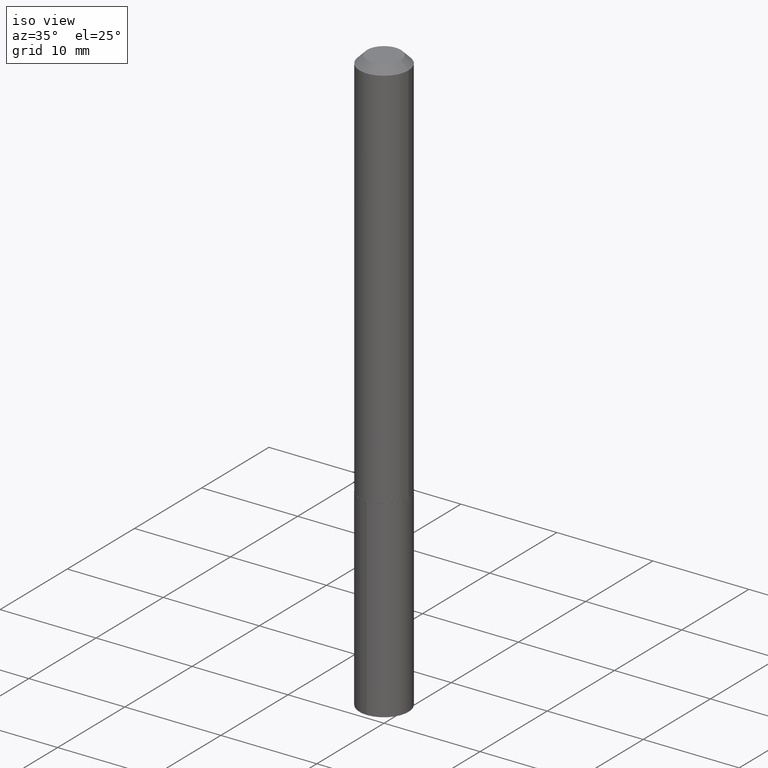
[diagram: clean part render]
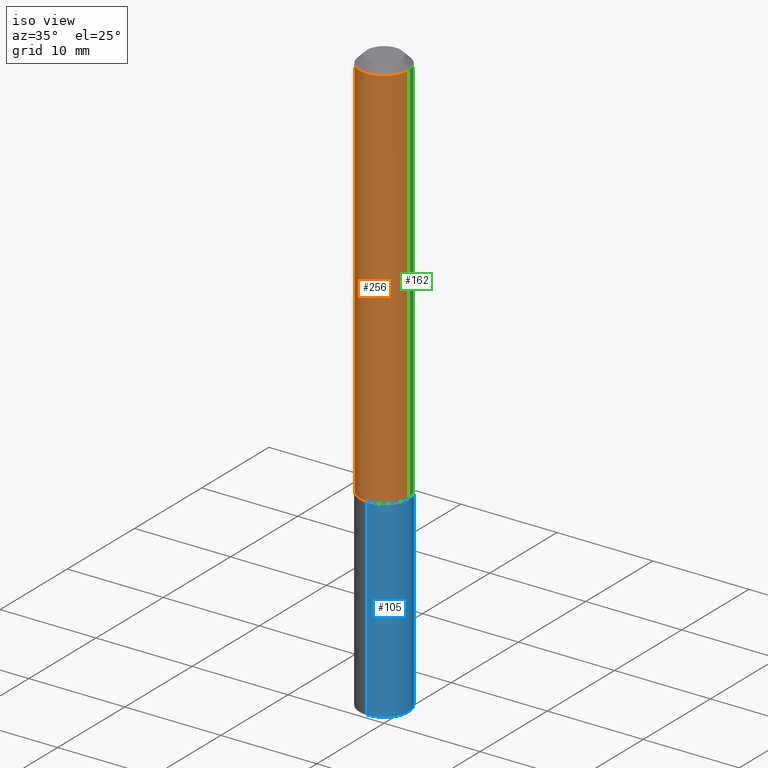
[diagram: same view with three faces highlighted in distinct colors, each labeled with its STEP entity id]
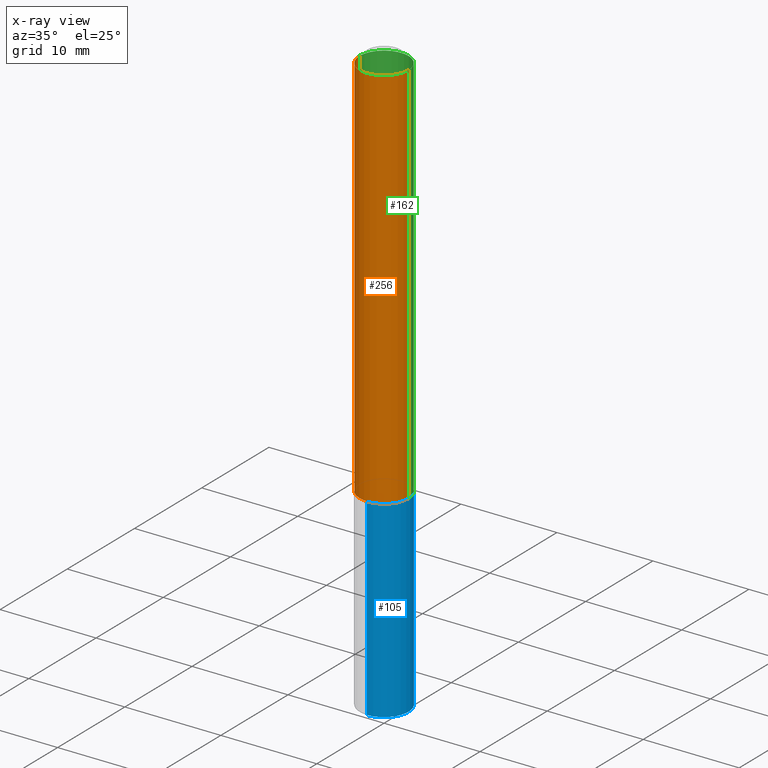
[diagram: x-ray of the same camera — body ghosted, the three highlighted faces saturated]
A machine part, iso view with three faces highlighted in distinct colors.
The next image is the same camera in x-ray (body ghosted, the three faces saturated) — at least one of them is partly hidden behind the body in this view.
Their STEP definitions:

[orange] entity #256 — the highlighted cylindrical surface (edge-blend (fillet) strip) has radius 2.5502 mm, axis along (-0, 0, 1).
#2 = CARTESIAN_POINT ( 'NONE',  ( 0.1004000000000002113, -6.348909666552376614E-15, -1.617600000000000149 ) ) ;
#46 = CARTESIAN_POINT ( 'NONE',  ( 0.1004000000000001142, -7.010894528397019642E-16, 4.895681482899124760E-30 ) ) ;
#47 = VERTEX_POINT ( 'NONE', #359 ) ;
#53 = VERTEX_POINT ( 'NONE', #70 ) ;
#61 = CARTESIAN_POINT ( 'NONE',  ( -0.1004000000000001142, 7.133849067031413977E-16, -4.938610830615930599E-30 ) ) ;
#65 = EDGE_LOOP ( 'NONE', ( #339, #270, #92, #271 ) ) ;
#66 = DIRECTION ( 'NONE',  ( 1.000000000000000000, -6.982962677686266711E-15, 4.876176775795935232E-29 ) ) ;
#70 = CARTESIAN_POINT ( 'NONE',  ( 0.1004000000000000170, -8.101982446785503746E-16, -0.03125000000000020123 ) ) ;
#81 = VERTEX_POINT ( 'NONE', #384 ) ;
#92 = ORIENTED_EDGE ( 'NONE', *, *, #292, .T. ) ;
#107 = VECTOR ( 'NONE', #181, 39.37007874015748143 ) ;
#117 = LINE ( 'NONE', #46, #265 ) ;
#129 = CARTESIAN_POINT ( 'NONE',  ( 0.000000000000000000, 0.000000000000000000, 0.000000000000000000 ) ) ;
#137 = CIRCLE ( 'NONE', #351, 0.1004000000000002113 ) ;
#146 = EDGE_CURVE ( 'NONE', #47, #236, #137, .T. ) ;
#150 = AXIS2_PLACEMENT_3D ( 'NONE', #129, #220, #66 ) ;
#160 = DIRECTION ( 'NONE',  ( 1.000000000000000000, -6.982962677686267499E-15, 0.000000000000000000 ) ) ;
#168 = CARTESIAN_POINT ( 'NONE',  ( 7.642090019328601786E-31, -1.091087918388490144E-16, -0.03125000000000020123 ) ) ;
#180 = CIRCLE ( 'NONE', #358, 0.1004000000000000170 ) ;
#181 = DIRECTION ( 'NONE',  ( -2.445468806185136877E-29, 3.491481338843145188E-15, 1.000000000000000000 ) ) ;
#190 = EDGE_CURVE ( 'NONE', #47, #81, #273, .T. ) ;
#220 = DIRECTION ( 'NONE',  ( -2.445468806185136597E-29, 3.491481338843145583E-15, 1.000000000000000000 ) ) ;
#225 = FACE_OUTER_BOUND ( 'NONE', #65, .T. ) ;
#236 = VERTEX_POINT ( 'NONE', #2 ) ;
#240 = DIRECTION ( 'NONE',  ( 1.000000000000000000, -6.982962677686266711E-15, 0.000000000000000000 ) ) ;
#256 = ADVANCED_FACE ( 'NONE', ( #225 ), #335, .T. ) ;
#261 = DIRECTION ( 'NONE',  ( -2.445468806185136597E-29, 3.491481338843145583E-15, 1.000000000000000000 ) ) ;
#265 = VECTOR ( 'NONE', #340, 39.37007874015748143 ) ;
#270 = ORIENTED_EDGE ( 'NONE', *, *, #146, .T. ) ;
#271 = ORIENTED_EDGE ( 'NONE', *, *, #361, .F. ) ;
#273 = LINE ( 'NONE', #61, #107 ) ;
#292 = EDGE_CURVE ( 'NONE', #236, #53, #117, .T. ) ;
#331 = DIRECTION ( 'NONE',  ( -2.445468806185136597E-29, 3.491481338843145583E-15, 1.000000000000000000 ) ) ;
#335 = CYLINDRICAL_SURFACE ( 'NONE', #150, 0.1004000000000001142 ) ;
#339 = ORIENTED_EDGE ( 'NONE', *, *, #190, .F. ) ;
#340 = DIRECTION ( 'NONE',  ( -2.445468806185136877E-29, 3.491481338843145188E-15, 1.000000000000000000 ) ) ;
#351 = AXIS2_PLACEMENT_3D ( 'NONE', #363, #331, #160 ) ;
#358 = AXIS2_PLACEMENT_3D ( 'NONE', #168, #261, #240 ) ;
#359 = CARTESIAN_POINT ( 'NONE',  ( -0.1004000000000002113, -4.934435307009531477E-15, -1.617600000000000149 ) ) ;
#361 = EDGE_CURVE ( 'NONE', #81, #53, #180, .T. ) ;
#363 = CARTESIAN_POINT ( 'NONE',  ( 3.955790340885077095E-29, -5.647820213712673171E-15, -1.617600000000000149 ) ) ;
#384 = CARTESIAN_POINT ( 'NONE',  ( -0.1004000000000000170, -2.165079596072618653E-15, -0.03125000000000020123 ) ) ;

[blue] entity #105 — the highlighted cylindrical surface (edge-blend (fillet) strip) has radius 2.5502 mm, axis along (-0, 0, 1).
#11 = DIRECTION ( 'NONE',  ( -6.982962677686266711E-15, -1.000000000000000000, 2.720964137115799877E-15 ) ) ;
#26 = ORIENTED_EDGE ( 'NONE', *, *, #27, .T. ) ;
#27 = EDGE_CURVE ( 'NONE', #139, #370, #135, .T. ) ;
#29 = DIRECTION ( 'NONE',  ( -2.445476300407817820E-29, 3.491470606689721326E-15, 1.000000000000000000 ) ) ;
#39 = CARTESIAN_POINT ( 'NONE',  ( 7.133849067031800519E-16, 0.1003999999999943549, -1.618100000000000316 ) ) ;
#43 = EDGE_CURVE ( 'NONE', #195, #139, #277, .T. ) ;
#67 = CARTESIAN_POINT ( 'NONE',  ( -7.010894528396423066E-16, -0.1004000000000084408, -2.409244001596550167 ) ) ;
#69 = DIRECTION ( 'NONE',  ( -6.982962677686266711E-15, -1.000000000000000000, 2.720964137115799877E-15 ) ) ;
#78 = CARTESIAN_POINT ( 'NONE',  ( -7.010894528396616337E-16, -0.1004000000000056514, -1.618099999999999872 ) ) ;
#80 = CARTESIAN_POINT ( 'NONE',  ( 7.133849067031995762E-16, 0.1003999999999943549, -1.618100000000000316 ) ) ;
#95 = EDGE_LOOP ( 'NONE', ( #128, #26, #141, #268 ) ) ;
#103 = CARTESIAN_POINT ( 'NONE',  ( 5.891736981402338159E-29, -8.411821981615335412E-15, -2.409244001596550611 ) ) ;
#104 = VECTOR ( 'NONE', #278, 39.37007874015748143 ) ;
#105 = ADVANCED_FACE ( 'NONE', ( #356 ), #106, .T. ) ;
#106 = CYLINDRICAL_SURFACE ( 'NONE', #108, 0.1004000000000000031 ) ;
#108 = AXIS2_PLACEMENT_3D ( 'NONE', #362, #251, #69 ) ;
#127 = CIRCLE ( 'NONE', #133, 0.1004000000000000031 ) ;
#128 = ORIENTED_EDGE ( 'NONE', *, *, #43, .T. ) ;
#133 = AXIS2_PLACEMENT_3D ( 'NONE', #337, #231, #11 ) ;
#135 = LINE ( 'NONE', #39, #158 ) ;
#139 = VERTEX_POINT ( 'NONE', #301 ) ;
#141 = ORIENTED_EDGE ( 'NONE', *, *, #296, .F. ) ;
#158 = VECTOR ( 'NONE', #224, 39.37007874015748143 ) ;
#159 = LINE ( 'NONE', #297, #104 ) ;
#188 = DIRECTION ( 'NONE',  ( -6.982962677686266711E-15, -1.000000000000000000, 2.720964137115799877E-15 ) ) ;
#195 = VERTEX_POINT ( 'NONE', #67 ) ;
#224 = DIRECTION ( 'NONE',  ( -2.445476300407817820E-29, 3.491470606689721721E-15, 1.000000000000000000 ) ) ;
#227 = EDGE_CURVE ( 'NONE', #195, #316, #159, .T. ) ;
#231 = DIRECTION ( 'NONE',  ( -2.445476300407817820E-29, 3.491470606689721326E-15, 1.000000000000000000 ) ) ;
#251 = DIRECTION ( 'NONE',  ( -2.445476300407817820E-29, 3.491470606689721326E-15, 1.000000000000000000 ) ) ;
#268 = ORIENTED_EDGE ( 'NONE', *, *, #227, .F. ) ;
#277 = CIRCLE ( 'NONE', #376, 0.1004000000000000031 ) ;
#278 = DIRECTION ( 'NONE',  ( -2.445476300407817820E-29, 3.491470606689721721E-15, 1.000000000000000000 ) ) ;
#296 = EDGE_CURVE ( 'NONE', #316, #370, #127, .T. ) ;
#297 = CARTESIAN_POINT ( 'NONE',  ( -7.010894528396616337E-16, -0.1004000000000056514, -1.618099999999999872 ) ) ;
#301 = CARTESIAN_POINT ( 'NONE',  ( 7.133849067031996748E-16, 0.1003999999999916209, -2.409244001596551055 ) ) ;
#316 = VERTEX_POINT ( 'NONE', #78 ) ;
#337 = CARTESIAN_POINT ( 'NONE',  ( 3.957013075288169897E-29, -5.649565954382093886E-15, -1.618100000000000094 ) ) ;
#356 = FACE_OUTER_BOUND ( 'NONE', #95, .T. ) ;
#362 = CARTESIAN_POINT ( 'NONE',  ( 3.957013075288169897E-29, -5.649565954382093886E-15, -1.618100000000000094 ) ) ;
#370 = VERTEX_POINT ( 'NONE', #80 ) ;
#376 = AXIS2_PLACEMENT_3D ( 'NONE', #103, #29, #188 ) ;

[green] entity #162 — the highlighted cylindrical surface (edge-blend (fillet) strip) has radius 2.5502 mm, axis along (-0, 0, 1).
#2 = CARTESIAN_POINT ( 'NONE',  ( 0.1004000000000002113, -6.348909666552376614E-15, -1.617600000000000149 ) ) ;
#4 = FACE_OUTER_BOUND ( 'NONE', #185, .T. ) ;
#23 = ORIENTED_EDGE ( 'NONE', *, *, #142, .T. ) ;
#28 = CIRCLE ( 'NONE', #136, 0.1004000000000000170 ) ;
#45 = ORIENTED_EDGE ( 'NONE', *, *, #292, .F. ) ;
#46 = CARTESIAN_POINT ( 'NONE',  ( 0.1004000000000001142, -7.010894528397019642E-16, 4.895681482899124760E-30 ) ) ;
#47 = VERTEX_POINT ( 'NONE', #359 ) ;
#53 = VERTEX_POINT ( 'NONE', #70 ) ;
#56 = CIRCLE ( 'NONE', #91, 0.1004000000000002113 ) ;
#61 = CARTESIAN_POINT ( 'NONE',  ( -0.1004000000000001142, 7.133849067031413977E-16, -4.938610830615930599E-30 ) ) ;
#70 = CARTESIAN_POINT ( 'NONE',  ( 0.1004000000000000170, -8.101982446785503746E-16, -0.03125000000000020123 ) ) ;
#81 = VERTEX_POINT ( 'NONE', #384 ) ;
#91 = AXIS2_PLACEMENT_3D ( 'NONE', #154, #221, #222 ) ;
#107 = VECTOR ( 'NONE', #181, 39.37007874015748143 ) ;
#117 = LINE ( 'NONE', #46, #265 ) ;
#136 = AXIS2_PLACEMENT_3D ( 'NONE', #255, #309, #293 ) ;
#142 = EDGE_CURVE ( 'NONE', #236, #47, #56, .T. ) ;
#154 = CARTESIAN_POINT ( 'NONE',  ( 3.955790340885077095E-29, -5.647820213712673171E-15, -1.617600000000000149 ) ) ;
#162 = ADVANCED_FACE ( 'NONE', ( #4 ), #275, .T. ) ;
#181 = DIRECTION ( 'NONE',  ( -2.445468806185136877E-29, 3.491481338843145188E-15, 1.000000000000000000 ) ) ;
#185 = EDGE_LOOP ( 'NONE', ( #23, #243, #346, #45 ) ) ;
#190 = EDGE_CURVE ( 'NONE', #47, #81, #273, .T. ) ;
#198 = AXIS2_PLACEMENT_3D ( 'NONE', #388, #328, #279 ) ;
#221 = DIRECTION ( 'NONE',  ( -2.445468806185136597E-29, 3.491481338843145583E-15, 1.000000000000000000 ) ) ;
#222 = DIRECTION ( 'NONE',  ( 1.000000000000000000, -6.982962677686267499E-15, 0.000000000000000000 ) ) ;
#236 = VERTEX_POINT ( 'NONE', #2 ) ;
#243 = ORIENTED_EDGE ( 'NONE', *, *, #190, .T. ) ;
#255 = CARTESIAN_POINT ( 'NONE',  ( 7.642090019328601786E-31, -1.091087918388490144E-16, -0.03125000000000020123 ) ) ;
#265 = VECTOR ( 'NONE', #340, 39.37007874015748143 ) ;
#273 = LINE ( 'NONE', #61, #107 ) ;
#275 = CYLINDRICAL_SURFACE ( 'NONE', #198, 0.1004000000000001142 ) ;
#279 = DIRECTION ( 'NONE',  ( 1.000000000000000000, -6.982962677686266711E-15, 4.876176775795935232E-29 ) ) ;
#280 = EDGE_CURVE ( 'NONE', #53, #81, #28, .T. ) ;
#292 = EDGE_CURVE ( 'NONE', #236, #53, #117, .T. ) ;
#293 = DIRECTION ( 'NONE',  ( 1.000000000000000000, -6.982962677686266711E-15, 0.000000000000000000 ) ) ;
#309 = DIRECTION ( 'NONE',  ( -2.445468806185136597E-29, 3.491481338843145583E-15, 1.000000000000000000 ) ) ;
#328 = DIRECTION ( 'NONE',  ( -2.445468806185136597E-29, 3.491481338843145583E-15, 1.000000000000000000 ) ) ;
#340 = DIRECTION ( 'NONE',  ( -2.445468806185136877E-29, 3.491481338843145188E-15, 1.000000000000000000 ) ) ;
#346 = ORIENTED_EDGE ( 'NONE', *, *, #280, .F. ) ;
#359 = CARTESIAN_POINT ( 'NONE',  ( -0.1004000000000002113, -4.934435307009531477E-15, -1.617600000000000149 ) ) ;
#384 = CARTESIAN_POINT ( 'NONE',  ( -0.1004000000000000170, -2.165079596072618653E-15, -0.03125000000000020123 ) ) ;
#388 = CARTESIAN_POINT ( 'NONE',  ( 0.000000000000000000, 0.000000000000000000, 0.000000000000000000 ) ) ;